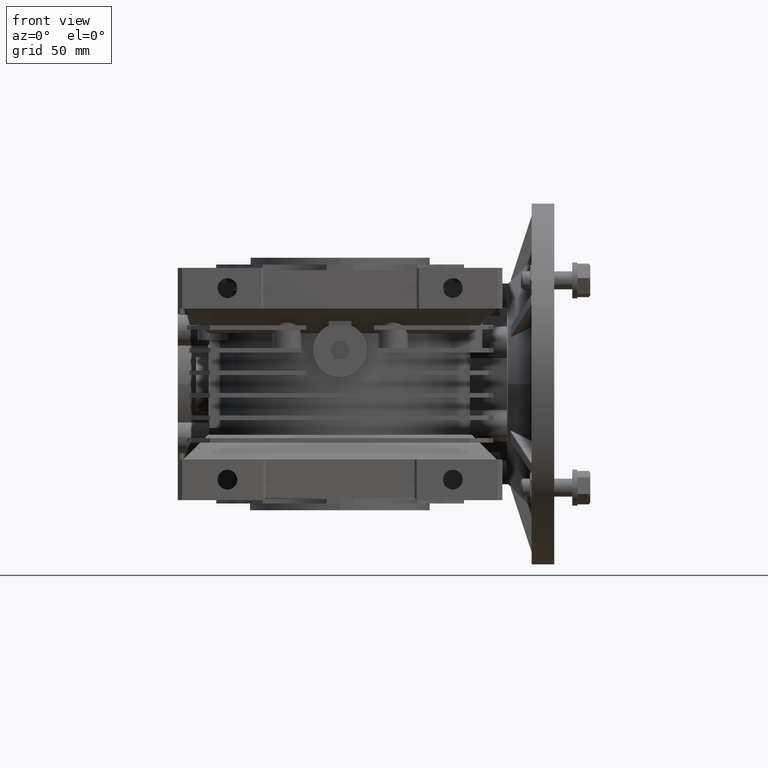
[diagram: clean part render]
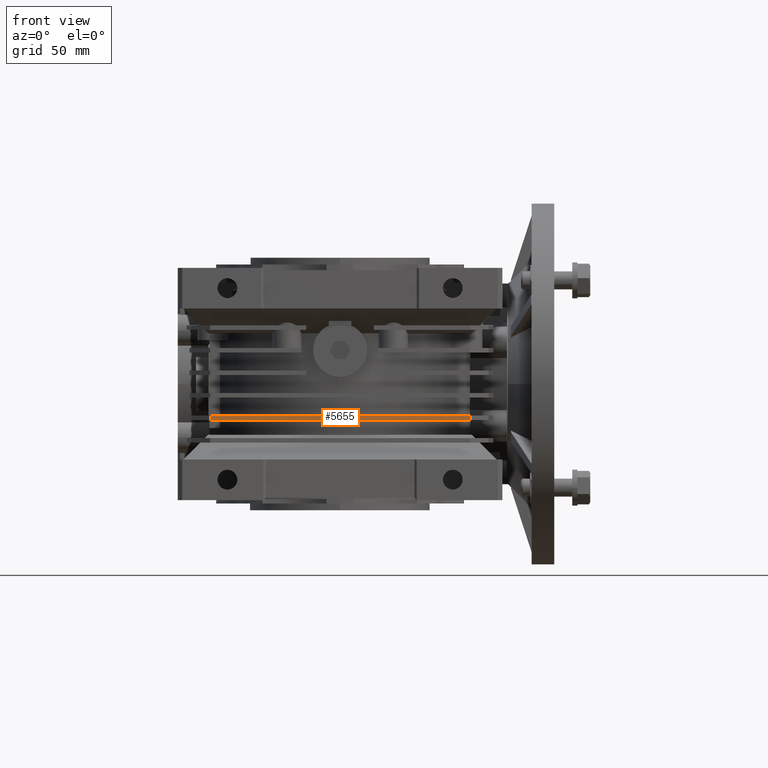
[diagram: same view with one face highlighted and labeled with its STEP entity id]
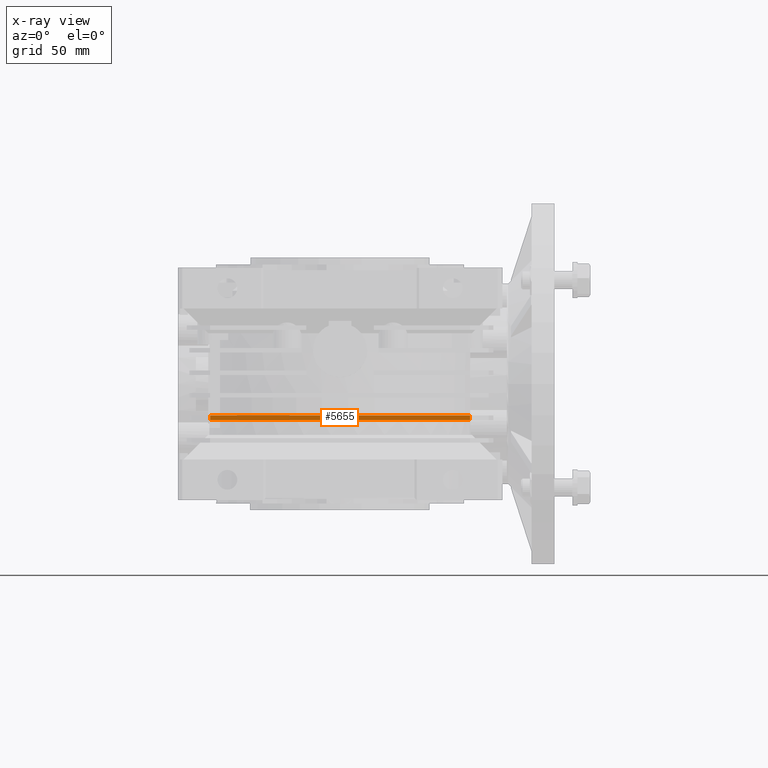
[diagram: x-ray of the same camera — body ghosted, the highlighted face saturated]
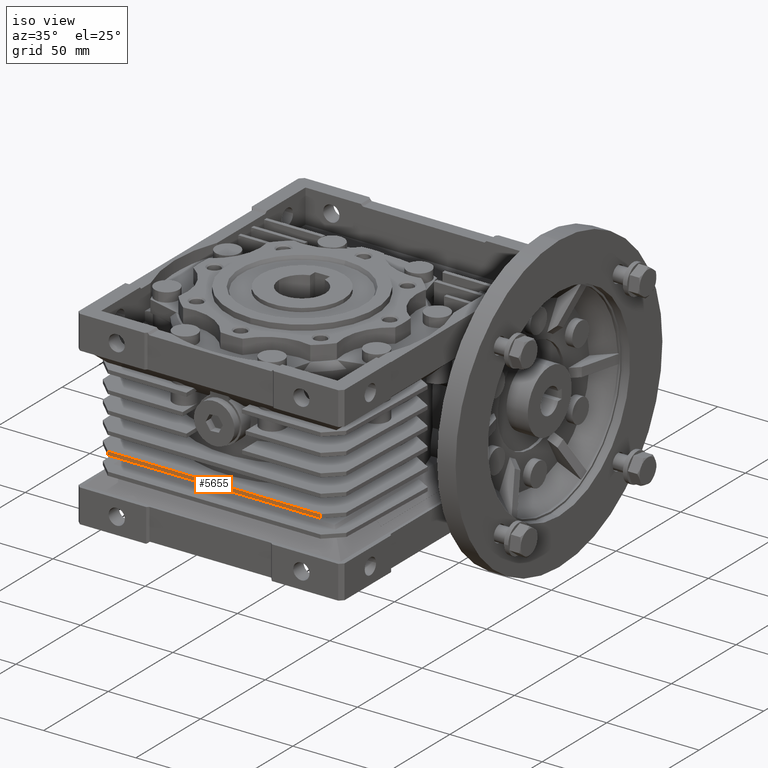
[diagram: same view with one face highlighted and labeled with its STEP entity id]
A machine part, front view. The second image highlights one B-rep face of the part: STEP entity #5655.
The next image is the same camera in x-ray: the body ghosted, the highlighted face saturated — about 0% of this face is hidden behind the body in this view.
A second angle (iso view) of the same face is appended — the face is thin or edge-on in the first view.
In plain terms, the highlighted planar face has unit normal (-0, 1, 0).
Its self-contained STEP definition (entity closure, byte-faithful):
#1010 = CARTESIAN_POINT ( 'NONE',  ( 57.62538767456119615, -68.00000000000000000, -16.00000000000000000 ) ) ;
#3346 = DIRECTION ( 'NONE',  ( 1.000000000000000000, 0.000000000000000000, 0.000000000000000000 ) ) ;
#3830 = CARTESIAN_POINT ( 'NONE',  ( -57.62538767456119615, -68.00000000000000000, -16.00000000000000000 ) ) ;
#5482 = CARTESIAN_POINT ( 'NONE',  ( -57.62538767456119615, -68.00000000000000000, -16.00000000000000000 ) ) ;
#5655 = ADVANCED_FACE ( 'NONE', ( #22554 ), #44711, .F. ) ;
#6763 = CARTESIAN_POINT ( 'NONE',  ( 0.000000000000000000, -68.00000000000000000, -16.00000000000000000 ) ) ;
#6971 = VERTEX_POINT ( 'NONE', #5482 ) ;
#8329 = VECTOR ( 'NONE', #15025, 1000.000000000000000 ) ;
#9928 = VECTOR ( 'NONE', #3346, 1000.000000000000000 ) ;
#11268 = EDGE_CURVE ( 'NONE', #28204, #42995, #37145, .T. ) ;
#13115 = DIRECTION ( 'NONE',  ( 0.000000000000000000, 0.000000000000000000, 1.000000000000000000 ) ) ;
#14770 = CARTESIAN_POINT ( 'NONE',  ( 57.62538767456119615, -68.00000000000000000, -16.00000000000000000 ) ) ;
#15025 = DIRECTION ( 'NONE',  ( 0.000000000000000000, 0.000000000000000000, 1.000000000000000000 ) ) ;
#15702 = VERTEX_POINT ( 'NONE', #19280 ) ;
#15717 = ORIENTED_EDGE ( 'NONE', *, *, #16561, .F. ) ;
#16561 = EDGE_CURVE ( 'NONE', #6971, #28204, #37213, .T. ) ;
#19280 = CARTESIAN_POINT ( 'NONE',  ( 57.62538767456119615, -68.00000000000000000, -16.00000000000000000 ) ) ;
#19749 = VECTOR ( 'NONE', #25926, 1000.000000000000000 ) ;
#20703 = ORIENTED_EDGE ( 'NONE', *, *, #11268, .F. ) ;
#22554 = FACE_OUTER_BOUND ( 'NONE', #40623, .T. ) ;
#25926 = DIRECTION ( 'NONE',  ( 1.000000000000000000, 0.000000000000000000, 0.000000000000000000 ) ) ;
#28180 = VECTOR ( 'NONE', #13115, 1000.000000000000000 ) ;
#28204 = VERTEX_POINT ( 'NONE', #46478 ) ;
#28749 = AXIS2_PLACEMENT_3D ( 'NONE', #14770, #41063, #45187 ) ;
#32592 = ORIENTED_EDGE ( 'NONE', *, *, #38742, .T. ) ;
#33700 = EDGE_CURVE ( 'NONE', #15702, #42995, #34389, .T. ) ;
#34389 = LINE ( 'NONE', #1010, #28180 ) ;
#36139 = CARTESIAN_POINT ( 'NONE',  ( 57.62538767456119615, -68.00000000000000000, -14.00000000000000000 ) ) ;
#36172 = ORIENTED_EDGE ( 'NONE', *, *, #33700, .T. ) ;
#37145 = LINE ( 'NONE', #41019, #19749 ) ;
#37213 = LINE ( 'NONE', #3830, #8329 ) ;
#38742 = EDGE_CURVE ( 'NONE', #6971, #15702, #40143, .T. ) ;
#40143 = LINE ( 'NONE', #6763, #9928 ) ;
#40623 = EDGE_LOOP ( 'NONE', ( #15717, #32592, #36172, #20703 ) ) ;
#41019 = CARTESIAN_POINT ( 'NONE',  ( 0.000000000000000000, -68.00000000000000000, -14.00000000000000000 ) ) ;
#41063 = DIRECTION ( 'NONE',  ( -0.000000000000000000, 1.000000000000000000, 0.000000000000000000 ) ) ;
#42995 = VERTEX_POINT ( 'NONE', #36139 ) ;
#44711 = PLANE ( 'NONE',  #28749 ) ;
#45187 = DIRECTION ( 'NONE',  ( 1.000000000000000000, 0.000000000000000000, 0.000000000000000000 ) ) ;
#46478 = CARTESIAN_POINT ( 'NONE',  ( -57.62538767456119615, -68.00000000000000000, -14.00000000000000000 ) ) ;